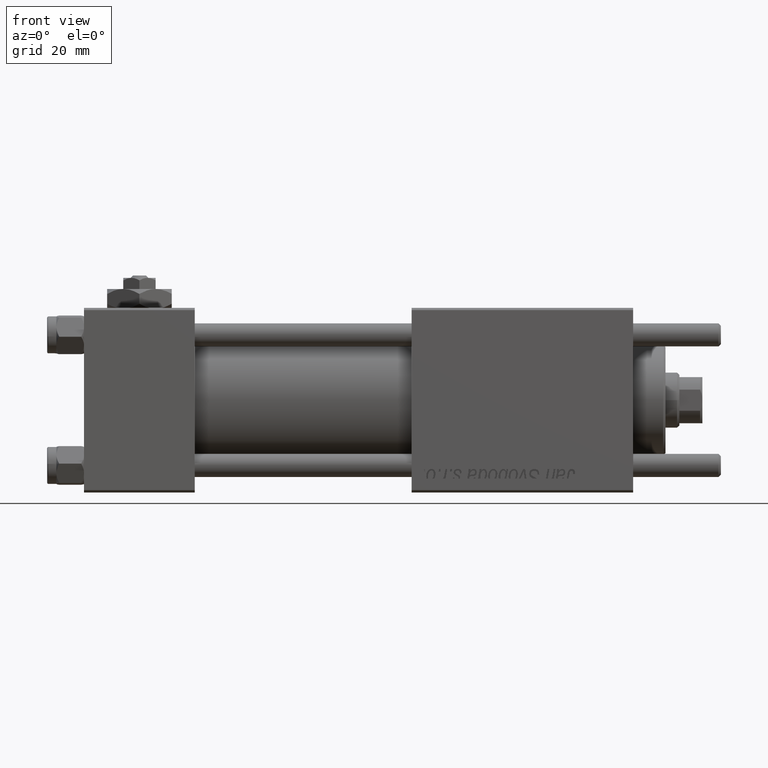
[diagram: clean part render]
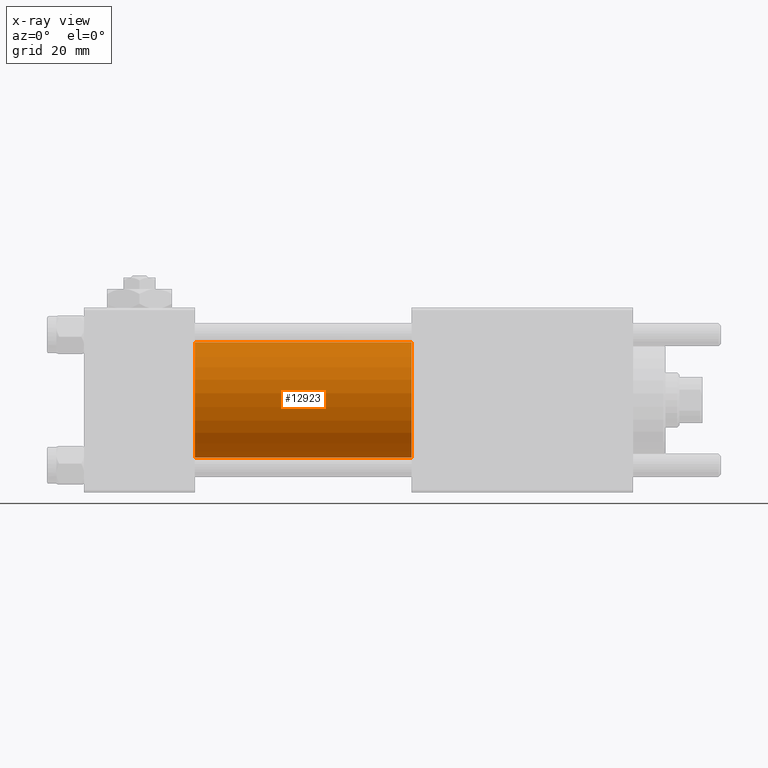
[diagram: x-ray — body ghosted, one internal face saturated and labeled with its STEP entity id]
A machine part, front view, then the same camera in x-ray: the body is ghosted and one INTERNAL B-rep face — a face not visible from any outside direction — is saturated and labeled: STEP entity #12923.
In plain terms, the highlighted cylindrical surface (partial cylindrical patch) has radius 12.5 mm, axis along (-1, -0, -0).
Its self-contained STEP definition (entity closure, byte-faithful):
#30 = VECTOR ( 'NONE', #42347, 1000.000000000000000 ) ;
#2959 = CARTESIAN_POINT ( 'NONE',  ( 24.00000000000000000, -2.602085213965210642E-15, 12.49999999999999645 ) ) ;
#3439 = DIRECTION ( 'NONE',  ( 0.000000000000000000, 0.000000000000000000, 1.000000000000000000 ) ) ;
#4567 = CARTESIAN_POINT ( 'NONE',  ( 24.00000000000000000, -1.071276715031019515E-15, -12.49999999999999645 ) ) ;
#5495 = ORIENTED_EDGE ( 'NONE', *, *, #53947, .T. ) ;
#6752 = CARTESIAN_POINT ( 'NONE',  ( 71.00000000000001421, -1.071276715031019515E-15, -12.49999999999999645 ) ) ;
#7061 = ORIENTED_EDGE ( 'NONE', *, *, #37229, .F. ) ;
#7718 = DIRECTION ( 'NONE',  ( 1.000000000000000000, 0.000000000000000000, 0.000000000000000000 ) ) ;
#10880 = VECTOR ( 'NONE', #46742, 1000.000000000000000 ) ;
#11599 = AXIS2_PLACEMENT_3D ( 'NONE', #39916, #38730, #3439 ) ;
#11617 = VERTEX_POINT ( 'NONE', #4567 ) ;
#12903 = CIRCLE ( 'NONE', #20463, 12.49999999999999645 ) ;
#12923 = ADVANCED_FACE ( 'NONE', ( #17068 ), #52654, .F. ) ;
#14692 = AXIS2_PLACEMENT_3D ( 'NONE', #58107, #7718, #25794 ) ;
#17068 = FACE_OUTER_BOUND ( 'NONE', #23891, .T. ) ;
#17281 = DIRECTION ( 'NONE',  ( 0.000000000000000000, 0.000000000000000000, -1.000000000000000000 ) ) ;
#19877 = CARTESIAN_POINT ( 'NONE',  ( 71.00000000000001421, -1.071276715031019515E-15, -12.49999999999999645 ) ) ;
#20463 = AXIS2_PLACEMENT_3D ( 'NONE', #39835, #34788, #17281 ) ;
#22087 = VERTEX_POINT ( 'NONE', #19877 ) ;
#23891 = EDGE_LOOP ( 'NONE', ( #31791, #5495, #7061, #57428 ) ) ;
#25732 = VERTEX_POINT ( 'NONE', #2959 ) ;
#25794 = DIRECTION ( 'NONE',  ( 0.000000000000000000, 0.000000000000000000, -1.000000000000000000 ) ) ;
#28383 = LINE ( 'NONE', #55640, #10880 ) ;
#31791 = ORIENTED_EDGE ( 'NONE', *, *, #32981, .T. ) ;
#32981 = EDGE_CURVE ( 'NONE', #35897, #22087, #49681, .T. ) ;
#33397 = EDGE_CURVE ( 'NONE', #35897, #25732, #28383, .T. ) ;
#34788 = DIRECTION ( 'NONE',  ( 1.000000000000000000, 0.000000000000000000, 0.000000000000000000 ) ) ;
#35897 = VERTEX_POINT ( 'NONE', #48105 ) ;
#37229 = EDGE_CURVE ( 'NONE', #25732, #11617, #12903, .T. ) ;
#38730 = DIRECTION ( 'NONE',  ( -1.000000000000000000, -0.000000000000000000, -0.000000000000000000 ) ) ;
#39835 = CARTESIAN_POINT ( 'NONE',  ( 24.00000000000000000, -2.602085213965210642E-15, 0.000000000000000000 ) ) ;
#39916 = CARTESIAN_POINT ( 'NONE',  ( 71.00000000000001421, -2.602085213965210642E-15, 0.000000000000000000 ) ) ;
#42347 = DIRECTION ( 'NONE',  ( -1.000000000000000000, -0.000000000000000000, -0.000000000000000000 ) ) ;
#46742 = DIRECTION ( 'NONE',  ( -1.000000000000000000, -0.000000000000000000, -0.000000000000000000 ) ) ;
#48105 = CARTESIAN_POINT ( 'NONE',  ( 71.00000000000001421, -2.602085213965210642E-15, 12.49999999999999645 ) ) ;
#49681 = CIRCLE ( 'NONE', #14692, 12.49999999999999645 ) ;
#51245 = LINE ( 'NONE', #6752, #30 ) ;
#52654 = CYLINDRICAL_SURFACE ( 'NONE', #11599, 12.49999999999999645 ) ;
#53947 = EDGE_CURVE ( 'NONE', #22087, #11617, #51245, .T. ) ;
#55640 = CARTESIAN_POINT ( 'NONE',  ( 71.00000000000001421, -2.602085213965210642E-15, 12.49999999999999645 ) ) ;
#57428 = ORIENTED_EDGE ( 'NONE', *, *, #33397, .F. ) ;
#58107 = CARTESIAN_POINT ( 'NONE',  ( 71.00000000000001421, -2.602085213965210642E-15, 0.000000000000000000 ) ) ;